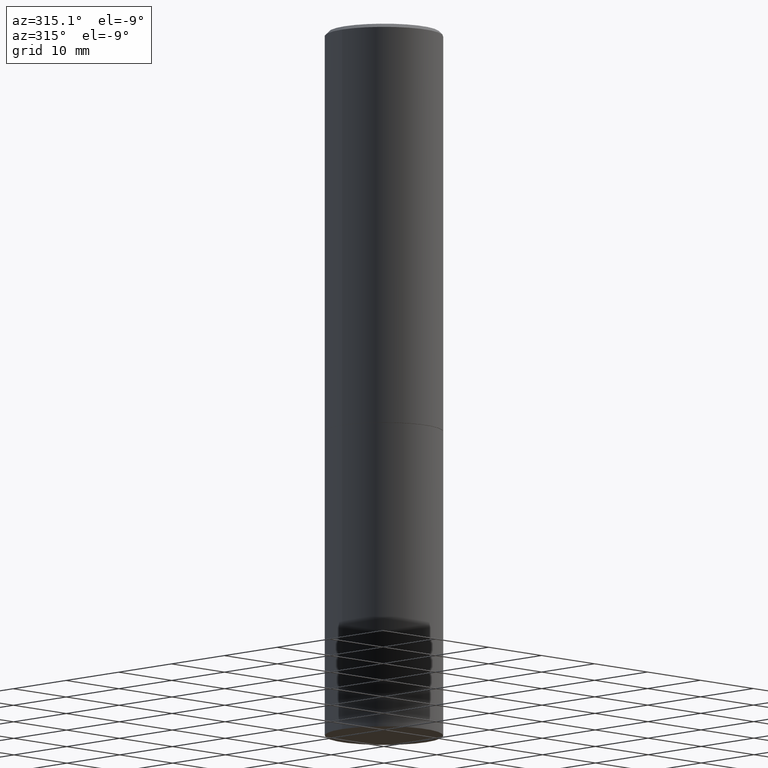
[diagram: clean part render]
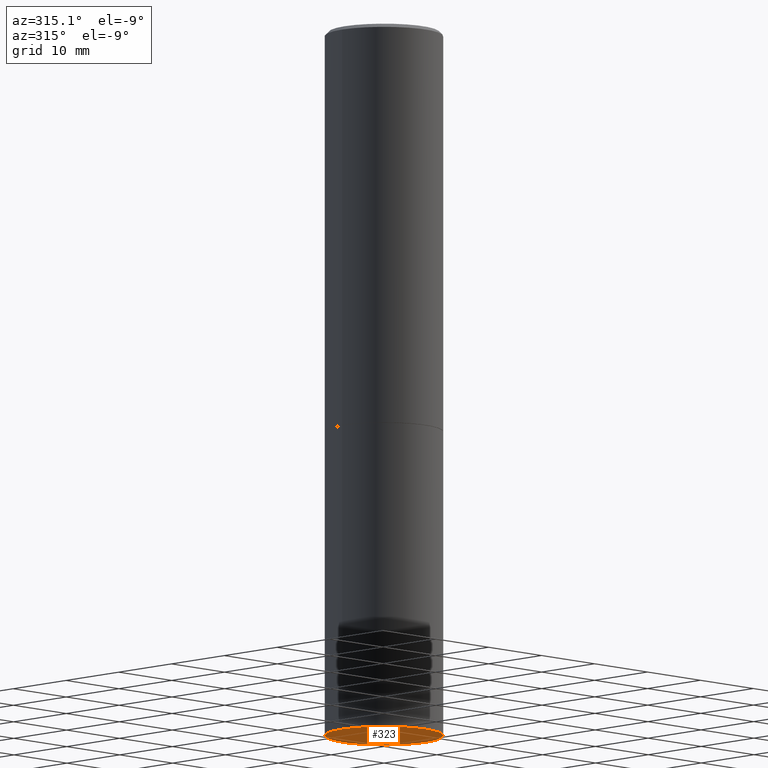
[diagram: same view with one face highlighted and labeled with its STEP entity id]
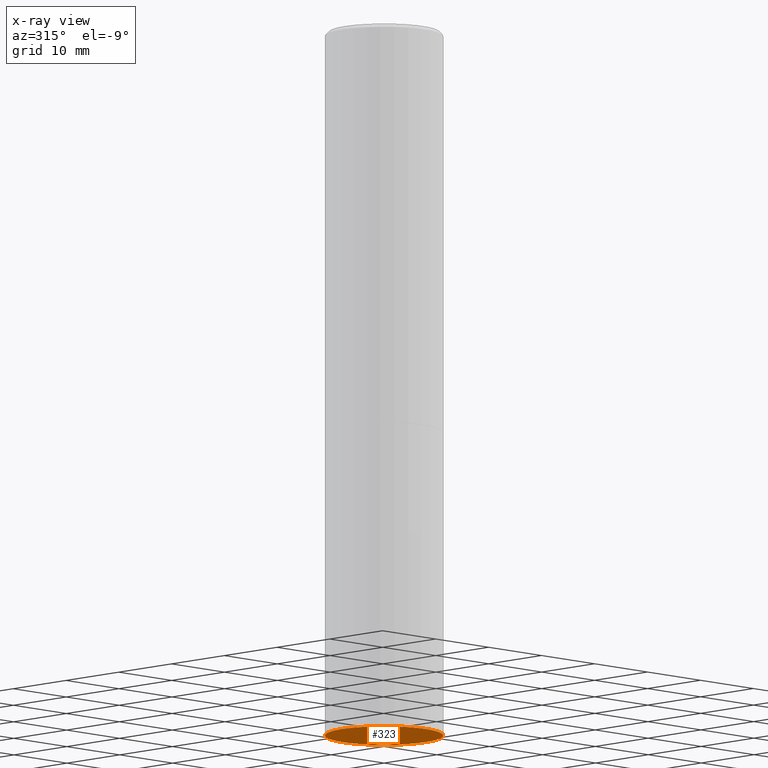
[diagram: x-ray of the same camera — body ghosted, the highlighted face saturated]
A machine part, auxiliary view. The second image highlights one B-rep face of the part: STEP entity #323.
The next image is the same camera in x-ray: the body ghosted, the highlighted face saturated — about 0% of this face is hidden behind the body in this view.
In plain terms, the highlighted planar face has unit normal (0, -0, -1).
Its self-contained STEP definition (entity closure, byte-faithful):
#19 = AXIS2_PLACEMENT_3D ( 'NONE', #311, #55, #60 ) ;
#22 = EDGE_LOOP ( 'NONE', ( #180, #361 ) ) ;
#36 = EDGE_CURVE ( 'NONE', #205, #356, #92, .T. ) ;
#38 = AXIS2_PLACEMENT_3D ( 'NONE', #237, #105, #351 ) ;
#55 = DIRECTION ( 'NONE',  ( 2.438088387897960049E-29, -3.491481338843145188E-15, -1.000000000000000000 ) ) ;
#60 = DIRECTION ( 'NONE',  ( -1.000000000000000000, 6.982962677686265922E-15, -4.876176775795935793E-29 ) ) ;
#72 = CIRCLE ( 'NONE', #250, 0.3125000000000000000 ) ;
#92 = CIRCLE ( 'NONE', #38, 0.3125000000000000000 ) ;
#100 = DIRECTION ( 'NONE',  ( -2.445468806185136597E-29, 3.491481338843145583E-15, 1.000000000000000000 ) ) ;
#101 = CARTESIAN_POINT ( 'NONE',  ( 9.170508023194262238E-29, -1.309305502066179741E-14, -3.750000000000000000 ) ) ;
#105 = DIRECTION ( 'NONE',  ( -2.445468806185136597E-29, 3.491481338843145583E-15, 1.000000000000000000 ) ) ;
#138 = CARTESIAN_POINT ( 'NONE',  ( 0.3125000000000000000, -1.527523085743875734E-14, -3.750000000000000000 ) ) ;
#145 = EDGE_CURVE ( 'NONE', #356, #205, #72, .T. ) ;
#149 = CARTESIAN_POINT ( 'NONE',  ( -0.3125000000000000000, -8.044509086948536533E-15, -3.750000000000000000 ) ) ;
#180 = ORIENTED_EDGE ( 'NONE', *, *, #36, .F. ) ;
#201 = PLANE ( 'NONE',  #19 ) ;
#205 = VERTEX_POINT ( 'NONE', #138 ) ;
#209 = DIRECTION ( 'NONE',  ( 1.000000000000000000, -6.982962677686269077E-15, 0.000000000000000000 ) ) ;
#237 = CARTESIAN_POINT ( 'NONE',  ( 9.170508023194262238E-29, -1.309305502066179741E-14, -3.750000000000000000 ) ) ;
#250 = AXIS2_PLACEMENT_3D ( 'NONE', #101, #100, #209 ) ;
#311 = CARTESIAN_POINT ( 'NONE',  ( 2.182175836777049855E-15, 0.3124999999999868994, -3.750000000000001332 ) ) ;
#323 = ADVANCED_FACE ( 'NONE', ( #355 ), #201, .T. ) ;
#351 = DIRECTION ( 'NONE',  ( 1.000000000000000000, -6.982962677686269077E-15, 0.000000000000000000 ) ) ;
#355 = FACE_OUTER_BOUND ( 'NONE', #22, .T. ) ;
#356 = VERTEX_POINT ( 'NONE', #149 ) ;
#361 = ORIENTED_EDGE ( 'NONE', *, *, #145, .F. ) ;